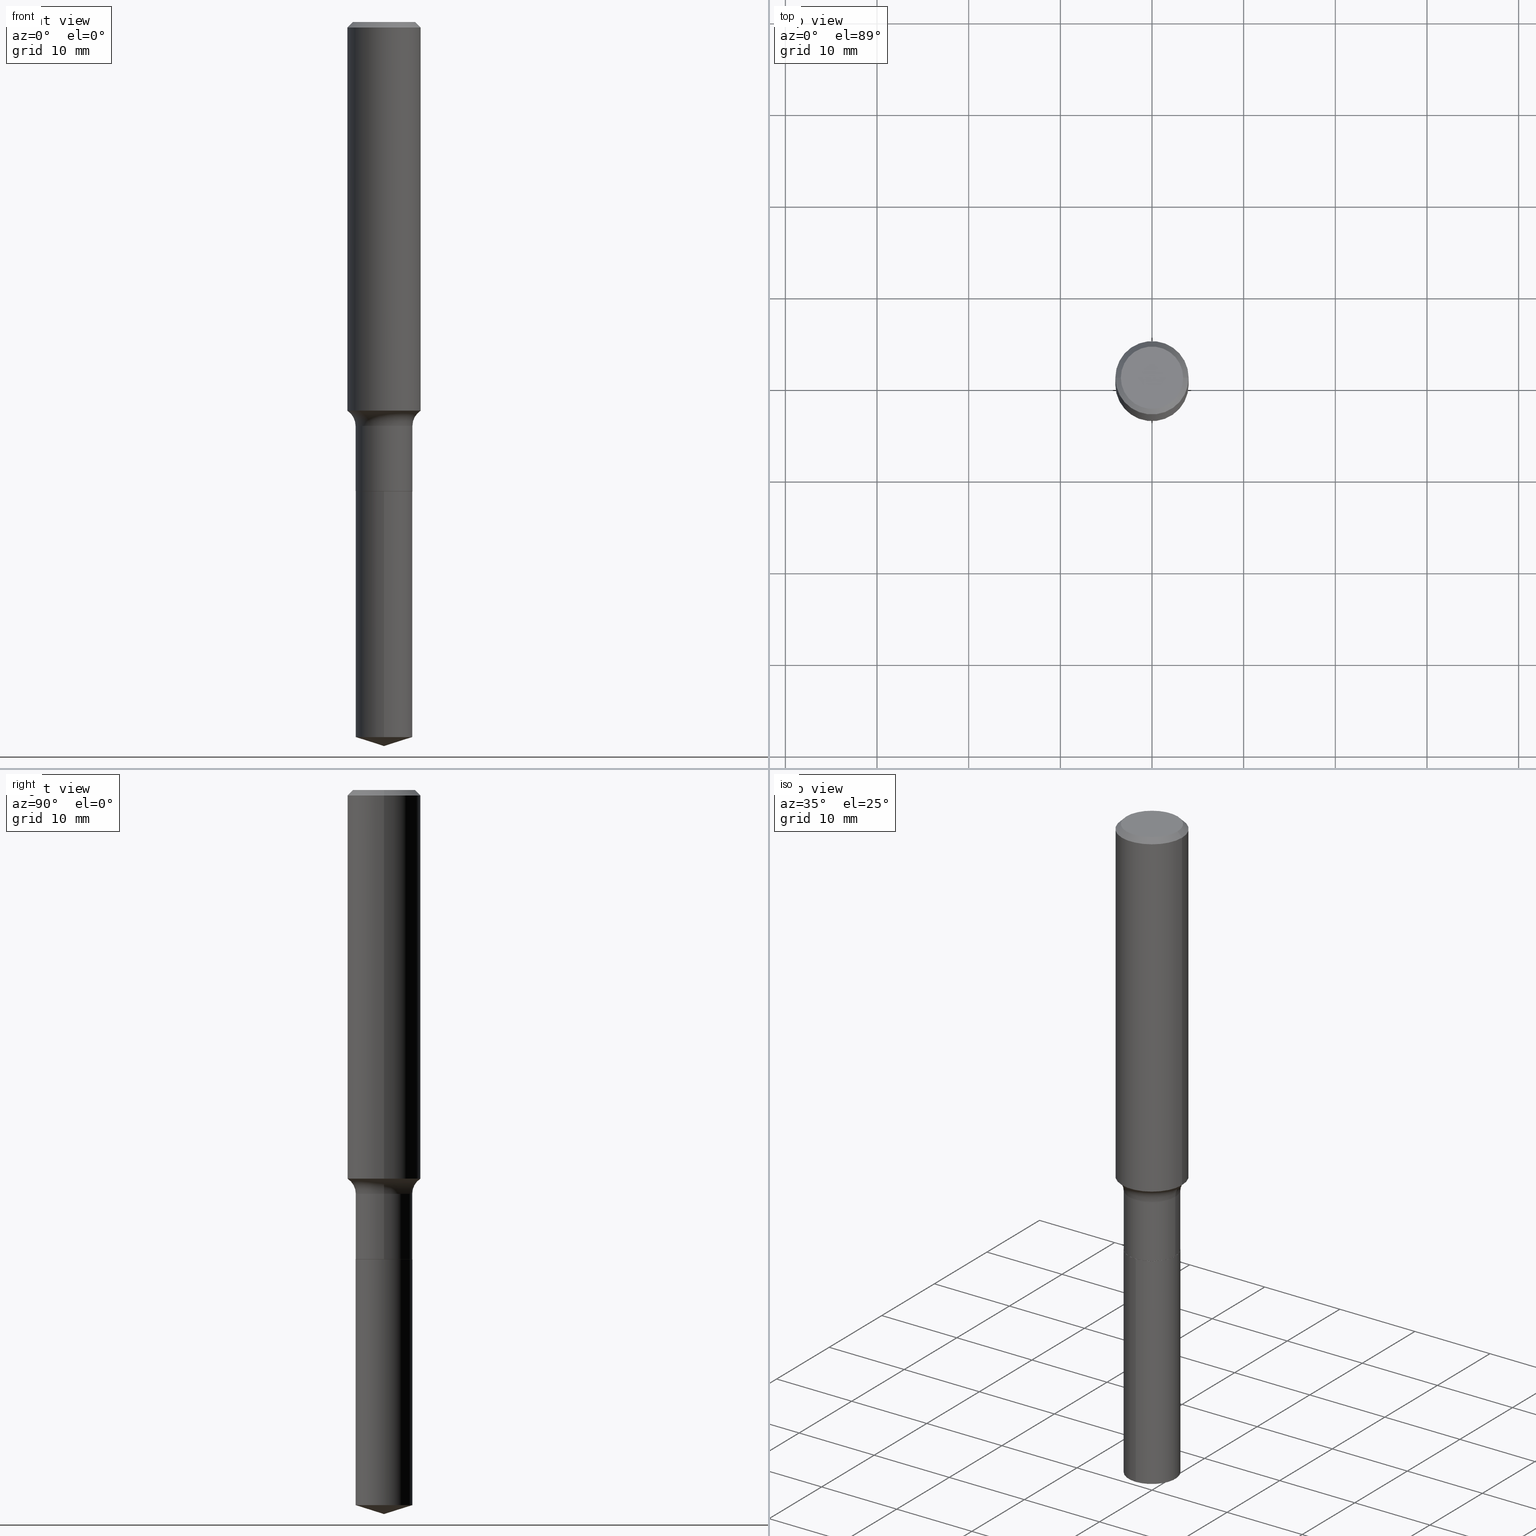
[diagram: canonical four-view strip — front | top / right | iso, engineering-drawing reading convention]
A machine part, canonical four-view strip (front | top / right | iso — engineering-drawing reading convention). The complete STEP part file that produces these views, byte-faithful:
ISO-10303-21;
HEADER;
FILE_DESCRIPTION (( 'STEP AP203' ),
    '1' );
FILE_NAME ('63755.STEP',
    '2024-04-19T15:07:46',
    ( '' ),
    ( '' ),
    'SwSTEP 2.0',
    'SolidWorks 2023',
    '' );
FILE_SCHEMA (( 'CONFIG_CONTROL_DESIGN' ));
ENDSEC;

DATA;
#1 = CIRCLE ( 'NONE', #301, 0.1220499999999999641 ) ;
#2 = DIRECTION ( 'NONE',  ( -2.445468806185136597E-29, 3.491481338843145583E-15, 1.000000000000000000 ) ) ;
#3 = ADVANCED_BREP_SHAPE_REPRESENTATION ( '63755', ( #262, #95, #406 ), #130 ) ;
#4 = CARTESIAN_POINT ( 'NONE',  ( 7.511731124286893286E-29, -1.072492965788716522E-14, -3.071717782817320330 ) ) ;
#5 = EDGE_CURVE ( 'NONE', #138, #92, #210, .T. ) ;
#6 = ORIENTED_EDGE ( 'NONE', *, *, #69, .F. ) ;
#7 = DIRECTION ( 'NONE',  ( 1.000000000000000000, -6.982962677686265922E-15, 0.000000000000000000 ) ) ;
#8 = EDGE_LOOP ( 'NONE', ( #329, #467, #327, #261 ) ) ;
#9 = VECTOR ( 'NONE', #223, 39.37007874015748143 ) ;
#10 = CIRCLE ( 'NONE', #226, 0.1338749999999999940 ) ;
#11 = EDGE_CURVE ( 'NONE', #55, #92, #133, .T. ) ;
#12 = ORIENTED_EDGE ( 'NONE', *, *, #340, .F. ) ;
#13 = PERSON_AND_ORGANIZATION_ROLE ( 'creator' ) ;
#14 = ORIENTED_EDGE ( 'NONE', *, *, #11, .F. ) ;
#15 = CYLINDRICAL_SURFACE ( 'NONE', #74, 0.1220499999999999641 ) ;
#16 = FACE_OUTER_BOUND ( 'NONE', #177, .T. ) ;
#17 = CARTESIAN_POINT ( 'NONE',  ( 7.511731124286893286E-29, -1.072492965788716522E-14, -3.071717782817320330 ) ) ;
#18 = AXIS2_PLACEMENT_3D ( 'NONE', #193, #386, #117 ) ;
#19 = DATE_AND_TIME ( #287, #220 ) ;
#20 = CARTESIAN_POINT ( 'NONE',  ( 0.000000000000000000, 0.000000000000000000, 0.000000000000000000 ) ) ;
#21 = DIMENSIONAL_EXPONENTS ( 1.000000000000000000, 0.000000000000000000, 0.000000000000000000, 0.000000000000000000, 0.000000000000000000, 0.000000000000000000, 0.000000000000000000 ) ;
#22 = ORIENTED_EDGE ( 'NONE', *, *, #188, .F. ) ;
#23 = DIRECTION ( 'NONE',  ( -2.445413035346810779E-29, 3.491561205857907199E-15, 1.000000000000000000 ) ) ;
#24 = CARTESIAN_POINT ( 'NONE',  ( 5.777420054612421980E-31, -8.248624663016985234E-17, -0.02362500000000015282 ) ) ;
#25 = FACE_OUTER_BOUND ( 'NONE', #359, .T. ) ;
#26 = ADVANCED_FACE ( 'NONE', ( #25 ), #439, .T. ) ;
#27 = VECTOR ( 'NONE', #260, 39.37007874015748143 ) ;
#28 = ORIENTED_EDGE ( 'NONE', *, *, #213, .F. ) ;
#29 = CARTESIAN_POINT ( 'NONE',  ( 5.777420054612421980E-31, -8.248624663016985234E-17, -0.02362500000000015282 ) ) ;
#30 = DIRECTION ( 'NONE',  ( 1.000000000000000000, -6.982962677686265922E-15, 4.883557194083112901E-29 ) ) ;
#31 = AXIS2_PLACEMENT_3D ( 'NONE', #358, #412, #7 ) ;
#32 = CARTESIAN_POINT ( 'NONE',  ( 0.1575000000000000011, -1.163014681279185964E-15, -0.02362500000000015282 ) ) ;
#33 = EDGE_CURVE ( 'NONE', #54, #397, #109, .T. ) ;
#34 = CYLINDRICAL_SURFACE ( 'NONE', #479, 0.1220499999999999641 ) ;
#35 = PERSON_AND_ORGANIZATION_ROLE ( 'design_owner' ) ;
#36 = DIRECTION ( 'NONE',  ( 1.000000000000000000, -6.982962677686265133E-15, 0.000000000000000000 ) ) ;
#37 = LINE ( 'NONE', #32, #361 ) ;
#38 = CARTESIAN_POINT ( 'NONE',  ( 0.1575000000000000011, -1.182302868365756679E-15, -0.02362500000000015282 ) ) ;
#39 = EDGE_CURVE ( 'NONE', #399, #292, #101, .T. ) ;
#40 = APPROVAL_PERSON_ORGANIZATION ( #45, #50, #458 ) ;
#41 = DIRECTION ( 'NONE',  ( 1.000000000000000000, -6.982962677686266711E-15, 0.000000000000000000 ) ) ;
#42 = AXIS2_PLACEMENT_3D ( 'NONE', #435, #441, #97 ) ;
#43 = AXIS2_PLACEMENT_3D ( 'NONE', #4, #388, #123 ) ;
#44 = DIRECTION ( 'NONE',  ( -6.982962677686265922E-15, -1.000000000000000000, 3.500519750498701277E-15 ) ) ;
#45 = PERSON_AND_ORGANIZATION ( #52, #482 ) ;
#46 = CARTESIAN_POINT ( 'NONE',  ( 4.083023208467837425E-29, -5.829475028416973418E-15, -1.669628006761304961 ) ) ;
#47 = ORIENTED_EDGE ( 'NONE', *, *, #417, .F. ) ;
#48 = ADVANCED_FACE ( 'NONE', ( #376 ), #288, .T. ) ;
#49 = ORIENTED_EDGE ( 'NONE', *, *, #33, .F. ) ;
#50 = APPROVAL ( #356, 'UNSPECIFIED' ) ;
#51 = CONICAL_SURFACE ( 'NONE', #246, 124.8659371009151755, 1.265363707695891904 ) ;
#52 = PERSON ( 'UNSPECIFIED', 'UNSPECIFIED', 'UNSPECIFIED', ('UNSPECIFIED'), ('UNSPECIFIED'), ('UNSPECIFIED') ) ;
#53 = PERSON_AND_ORGANIZATION ( #52, #482 ) ;
#54 = VERTEX_POINT ( 'NONE', #400 ) ;
#55 = VERTEX_POINT ( 'NONE', #405 ) ;
#56 = CARTESIAN_POINT ( 'NONE',  ( 4.929331472627379761E-29, -7.037778934706128744E-15, -2.015699999999999825 ) ) ;
#57 = ORIENTED_EDGE ( 'NONE', *, *, #389, .T. ) ;
#58 = PERSON_AND_ORGANIZATION ( #52, #482 ) ;
#59 = ORIENTED_EDGE ( 'NONE', *, *, #206, .T. ) ;
#60 = CARTESIAN_POINT ( 'NONE',  ( 0.2000499999999999223, -7.454661806563995629E-15, -1.735000000000000098 ) ) ;
#61 = FACE_OUTER_BOUND ( 'NONE', #250, .T. ) ;
#62 = CONICAL_SURFACE ( 'NONE', #348, 0.1575000000000000011, 0.7853981633974447263 ) ;
#63 = SHAPE_DEFINITION_REPRESENTATION ( #402, #3 ) ;
#64 = DIRECTION ( 'NONE',  ( 1.000000000000000000, -6.982962677686265922E-15, 0.000000000000000000 ) ) ;
#65 = APPROVAL_DATE_TIME ( #90, #85 ) ;
#66 = DIRECTION ( 'NONE',  ( -2.445468806185136597E-29, 3.491481338843145583E-15, 1.000000000000000000 ) ) ;
#67 = FACE_OUTER_BOUND ( 'NONE', #91, .T. ) ;
#68 = DIRECTION ( 'NONE',  ( -6.982962677686266711E-15, -1.000000000000000000, 3.491481338843145583E-15 ) ) ;
#69 = EDGE_CURVE ( 'NONE', #292, #423, #102, .T. ) ;
#70 = DIRECTION ( 'NONE',  ( 1.000000000000000000, -6.982962677686265922E-15, 0.000000000000000000 ) ) ;
#71 = COORDINATED_UNIVERSAL_TIME_OFFSET ( 5, 0, .BEHIND. ) ;
#72 = PRODUCT_DEFINITION_FORMATION_WITH_SPECIFIED_SOURCE ( 'ANY', '', #392, .NOT_KNOWN. ) ;
#73 = CARTESIAN_POINT ( 'NONE',  ( 7.605723622535650705E-29, -1.085945366245926235E-14, -3.110199999999999854 ) ) ;
#74 = AXIS2_PLACEMENT_3D ( 'NONE', #20, #256, #264 ) ;
#75 = AXIS2_PLACEMENT_3D ( 'NONE', #270, #154, #451 ) ;
#76 = DIRECTION ( 'NONE',  ( -2.438088387897960049E-29, 3.491481338843145188E-15, 1.000000000000000000 ) ) ;
#77 = DIRECTION ( 'NONE',  ( 0.7071067811866078578, -2.468850131082888544E-15, 0.7071067811864871766 ) ) ;
#78 = CC_DESIGN_PERSON_AND_ORGANIZATION_ASSIGNMENT ( #58, #469, ( #72 ) ) ;
#79 = FACE_OUTER_BOUND ( 'NONE', #363, .T. ) ;
#80 = AXIS2_PLACEMENT_3D ( 'NONE', #436, #107, #252 ) ;
#81 = AXIS2_PLACEMENT_3D ( 'NONE', #143, #23, #227 ) ;
#82 = COORDINATED_UNIVERSAL_TIME_OFFSET ( 5, 0, .BEHIND. ) ;
#83 = EDGE_CURVE ( 'NONE', #214, #294, #234, .T. ) ;
#84 = FACE_OUTER_BOUND ( 'NONE', #432, .T. ) ;
#85 = APPROVAL ( #208, 'UNSPECIFIED' ) ;
#86 = ORIENTED_EDGE ( 'NONE', *, *, #389, .F. ) ;
#87 = CYLINDRICAL_SURFACE ( 'NONE', #387, 0.1575000000000000844 ) ;
#88 = ORIENTED_EDGE ( 'NONE', *, *, #403, .F. ) ;
#89 = CONICAL_SURFACE ( 'NONE', #311, 0.1215500000000000053, 0.7853981633975336552 ) ;
#90 = DATE_AND_TIME ( #173, #330 ) ;
#91 = EDGE_LOOP ( 'NONE', ( #140, #170, #86, #244 ) ) ;
#92 = VERTEX_POINT ( 'NONE', #476 ) ;
#93 = CARTESIAN_POINT ( 'NONE',  ( 0.1215500000000000053, -7.886558048178895333E-15, -2.015699999999999825 ) ) ;
#94 = EDGE_CURVE ( 'NONE', #399, #253, #186, .T. ) ;
#95 = MANIFOLD_SOLID_BREP ( 'Body-Move/Copy2[2]', #202 ) ;
#96 = ORIENTED_EDGE ( 'NONE', *, *, #213, .T. ) ;
#97 = DIRECTION ( 'NONE',  ( 1.000000000000000000, -6.982962677686266711E-15, 0.000000000000000000 ) ) ;
#98 = TOROIDAL_SURFACE ( 'NONE', #156, 0.2000499999999999223, 0.07799999999999997213 ) ;
#99 = DIRECTION ( 'NONE',  ( 1.000000000000000000, -6.982962677686265922E-15, 0.000000000000000000 ) ) ;
#100 = PERSON_AND_ORGANIZATION ( #52, #482 ) ;
#101 = LINE ( 'NONE', #249, #410 ) ;
#102 = CIRCLE ( 'NONE', #383, 0.1575000000000000011 ) ;
#103 = AXIS2_PLACEMENT_3D ( 'NONE', #360, #201, #463 ) ;
#104 = EDGE_CURVE ( 'NONE', #480, #423, #215, .T. ) ;
#105 = ORIENTED_EDGE ( 'NONE', *, *, #141, .F. ) ;
#106 = CC_DESIGN_DATE_AND_TIME_ASSIGNMENT ( #485, #346, ( #255 ) ) ;
#107 = DIRECTION ( 'NONE',  ( 2.445468806185136597E-29, -3.491481338843145583E-15, -1.000000000000000000 ) ) ;
#108 = VERTEX_POINT ( 'NONE', #373 ) ;
#109 = CIRCLE ( 'NONE', #372, 0.1220500000000000057 ) ;
#110 = CIRCLE ( 'NONE', #31, 0.1575000000000001954 ) ;
#111 =( NAMED_UNIT ( * ) SI_UNIT ( $, .STERADIAN. ) SOLID_ANGLE_UNIT ( ) );
#112 = CARTESIAN_POINT ( 'NONE',  ( -8.867026771399698515E-28, 1.266037469261874073E-13, 36.25987874015748247 ) ) ;
#113 = DIRECTION ( 'NONE',  ( 2.445468806185136597E-29, -3.491481338843145583E-15, -1.000000000000000000 ) ) ;
#114 = APPLICATION_PROTOCOL_DEFINITION ( 'international standard', 'config_control_design', 1994, #205 ) ;
#115 = CARTESIAN_POINT ( 'NONE',  ( 0.1220499999999999641, -6.909990717704466794E-15, -1.735000000000000098 ) ) ;
#116 = PLANE ( 'NONE',  #124 ) ;
#117 = DIRECTION ( 'NONE',  ( -6.982962677686265922E-15, -1.000000000000000000, 4.476604659834925490E-15 ) ) ;
#118 = ADVANCED_FACE ( 'NONE', ( #67 ), #15, .T. ) ;
#119 = CARTESIAN_POINT ( 'NONE',  ( 0.1338749999999999940, -1.040731925365424925E-15, 4.101342130351393887E-18 ) ) ;
#120 = DIRECTION ( 'NONE',  ( -2.445413035346810779E-29, 3.491561205857906805E-15, 1.000000000000000000 ) ) ;
#121 = COORDINATED_UNIVERSAL_TIME_OFFSET ( 5, 0, .BEHIND. ) ;
#122 = EDGE_CURVE ( 'NONE', #323, #292, #37, .T. ) ;
#123 = DIRECTION ( 'NONE',  ( -6.982962677686265922E-15, -1.000000000000000000, 4.476604659834925490E-15 ) ) ;
#124 = AXIS2_PLACEMENT_3D ( 'NONE', #416, #490, #158 ) ;
#125 = ORIENTED_EDGE ( 'NONE', *, *, #328, .F. ) ;
#126 = ORIENTED_EDGE ( 'NONE', *, *, #357, .T. ) ;
#127 = CC_DESIGN_PERSON_AND_ORGANIZATION_ASSIGNMENT ( #53, #13, ( #255 ) ) ;
#128 = ORIENTED_EDGE ( 'NONE', *, *, #488, .T. ) ;
#129 = ADVANCED_FACE ( 'NONE', ( #189 ), #62, .T. ) ;
#130 =( GEOMETRIC_REPRESENTATION_CONTEXT ( 3 ) GLOBAL_UNCERTAINTY_ASSIGNED_CONTEXT ( ( #443 ) ) GLOBAL_UNIT_ASSIGNED_CONTEXT ( ( #355, #228, #111 ) ) REPRESENTATION_CONTEXT ( 'NONE', 'WORKASPACE' ) );
#131 = ORIENTED_EDGE ( 'NONE', *, *, #206, .F. ) ;
#132 = VERTEX_POINT ( 'NONE', #222 ) ;
#133 = CIRCLE ( 'NONE', #428, 0.07799999999999999989 ) ;
#134 = CIRCLE ( 'NONE', #103, 0.1220499999999999780 ) ;
#135 = PERSON_AND_ORGANIZATION ( #52, #482 ) ;
#136 = ORIENTED_EDGE ( 'NONE', *, *, #191, .T. ) ;
#137 = ORIENTED_EDGE ( 'NONE', *, *, #488, .F. ) ;
#138 = VERTEX_POINT ( 'NONE', #271 ) ;
#139 = DIRECTION ( 'NONE',  ( 1.000000000000000000, -6.982962677686266711E-15, 4.876170806578254279E-29 ) ) ;
#140 = ORIENTED_EDGE ( 'NONE', *, *, #236, .T. ) ;
#141 = EDGE_CURVE ( 'NONE', #174, #108, #478, .T. ) ;
#142 = VECTOR ( 'NONE', #175, 39.37007874015748143 ) ;
#143 = CARTESIAN_POINT ( 'NONE',  ( 4.929331472627379761E-29, -7.037778934706128744E-15, -2.015699999999999825 ) ) ;
#144 = VECTOR ( 'NONE', #272, 39.37007874015748143 ) ;
#145 = APPROVAL ( #375, 'UNSPECIFIED' ) ;
#146 = CARTESIAN_POINT ( 'NONE',  ( -8.522705948115595040E-16, -0.1220500000000070279, -2.015699999999999381 ) ) ;
#147 = ADVANCED_FACE ( 'NONE', ( #450 ), #116, .F. ) ;
#148 = CARTESIAN_POINT ( 'NONE',  ( 4.242888378731212847E-29, -6.057720122892857986E-15, -1.735000000000000098 ) ) ;
#149 = ADVANCED_FACE ( 'NONE', ( #440 ), #326, .T. ) ;
#150 = CARTESIAN_POINT ( 'NONE',  ( 4.929331472627379761E-29, -7.037778934706128744E-15, -2.015699999999999825 ) ) ;
#151 = AXIS2_PLACEMENT_3D ( 'NONE', #56, #369, #335 ) ;
#152 = AXIS2_PLACEMENT_3D ( 'NONE', #310, #382, #36 ) ;
#153 = CARTESIAN_POINT ( 'NONE',  ( 8.672174089952514240E-16, 0.1220499999999929697, -2.015700000000000713 ) ) ;
#154 = DIRECTION ( 'NONE',  ( -2.445468806185136597E-29, 3.491481338843145583E-15, 1.000000000000000000 ) ) ;
#155 = CARTESIAN_POINT ( 'NONE',  ( 0.1215500000000000053, -7.886558048178895333E-15, -2.015699999999999825 ) ) ;
#156 = AXIS2_PLACEMENT_3D ( 'NONE', #148, #343, #30 ) ;
#157 = ADVANCED_FACE ( 'NONE', ( #16 ), #87, .T. ) ;
#158 = DIRECTION ( 'NONE',  ( -1.000000000000000000, 6.982962677686265922E-15, -4.876176775795935793E-29 ) ) ;
#159 = FACE_OUTER_BOUND ( 'NONE', #251, .T. ) ;
#160 = DIRECTION ( 'NONE',  ( -2.445413035346810779E-29, 3.491561205857907199E-15, 1.000000000000000000 ) ) ;
#161 = CIRCLE ( 'NONE', #176, 0.1575000000000000011 ) ;
#162 = LINE ( 'NONE', #380, #203 ) ;
#163 = EDGE_CURVE ( 'NONE', #108, #138, #431, .T. ) ;
#164 = DIRECTION ( 'NONE',  ( 2.445413035346810779E-29, -3.491561205857906805E-15, -1.000000000000000000 ) ) ;
#165 = ORIENTED_EDGE ( 'NONE', *, *, #94, .F. ) ;
#166 = CONICAL_SURFACE ( 'NONE', #194, 124.8659371009151755, 1.265363707695891904 ) ;
#167 = ORIENTED_EDGE ( 'NONE', *, *, #365, .T. ) ;
#168 = ORIENTED_EDGE ( 'NONE', *, *, #104, .F. ) ;
#169 = DIRECTION ( 'NONE',  ( -2.445468806185136597E-29, 3.491481338843145583E-15, 1.000000000000000000 ) ) ;
#170 = ORIENTED_EDGE ( 'NONE', *, *, #5, .T. ) ;
#171 = DIRECTION ( 'NONE',  ( -1.000000000000000000, 7.105427357600997914E-15, 0.000000000000000000 ) ) ;
#172 = DIRECTION ( 'NONE',  ( -2.445468806185136597E-29, 3.491481338843145583E-15, 1.000000000000000000 ) ) ;
#173 = CALENDAR_DATE ( 2024, 19, 4 ) ;
#174 = VERTEX_POINT ( 'NONE', #93 ) ;
#175 = DIRECTION ( 'NONE',  ( -2.445468806185136877E-29, 3.491481338843145188E-15, 1.000000000000000000 ) ) ;
#176 = AXIS2_PLACEMENT_3D ( 'NONE', #29, #295, #99 ) ;
#177 = EDGE_LOOP ( 'NONE', ( #366, #128, #408, #131 ) ) ;
#178 = EDGE_LOOP ( 'NONE', ( #434, #466, #459, #125 ) ) ;
#179 = DIRECTION ( 'NONE',  ( -2.445468806185136597E-29, 3.491481338843145583E-15, 1.000000000000000000 ) ) ;
#180 = CC_DESIGN_DATE_AND_TIME_ASSIGNMENT ( #296, #433, ( #199 ) ) ;
#181 = DIRECTION ( 'NONE',  ( 1.000000000000000000, -6.982962677686265922E-15, 0.000000000000000000 ) ) ;
#182 = AXIS2_PLACEMENT_3D ( 'NONE', #374, #179, #254 ) ;
#183 = CC_DESIGN_PERSON_AND_ORGANIZATION_ASSIGNMENT ( #337, #219, ( #72 ) ) ;
#184 = DIRECTION ( 'NONE',  ( 0.7071067811865450192, -7.319954787623246579E-15, -0.7071067811865500152 ) ) ;
#185 = DIRECTION ( 'NONE',  ( 0.000000000000000000, 0.000000000000000000, 1.000000000000000000 ) ) ;
#186 = CIRCLE ( 'NONE', #280, 0.07799999999999999989 ) ;
#187 = DIRECTION ( 'NONE',  ( -2.445468806185136877E-29, 3.491481338843145188E-15, 1.000000000000000000 ) ) ;
#188 = EDGE_CURVE ( 'NONE', #138, #289, #134, .T. ) ;
#189 = FACE_OUTER_BOUND ( 'NONE', #473, .T. ) ;
#190 = CARTESIAN_POINT ( 'NONE',  ( 8.672174089952774564E-16, 0.1220499999999929697, -2.015700000000000713 ) ) ;
#191 = EDGE_CURVE ( 'NONE', #108, #174, #318, .T. ) ;
#192 = LOCAL_TIME ( 11, 7, 46.00000000000000000, #212 ) ;
#193 = CARTESIAN_POINT ( 'NONE',  ( 4.929331472627379761E-29, -7.037778934706128744E-15, -2.015699999999999825 ) ) ;
#194 = AXIS2_PLACEMENT_3D ( 'NONE', #420, #266, #448 ) ;
#195 = PERSON_AND_ORGANIZATION ( #52, #482 ) ;
#196 = ADVANCED_FACE ( 'NONE', ( #218 ), #225, .T. ) ;
#197 = DIRECTION ( 'NONE',  ( -0.7071067811866078578, 7.493145998870571886E-15, 0.7071067811864871766 ) ) ;
#198 = FACE_OUTER_BOUND ( 'NONE', #464, .T. ) ;
#199 = SECURITY_CLASSIFICATION ( '', '', #230 ) ;
#200 = ORIENTED_EDGE ( 'NONE', *, *, #328, .T. ) ;
#201 = DIRECTION ( 'NONE',  ( -2.445468806185136597E-29, 3.491481338843145583E-15, 1.000000000000000000 ) ) ;
#202 = CLOSED_SHELL ( 'NONE', ( #306, #26, #232, #312, #118, #282, #472, #157, #129, #147, #239, #48 ) ) ;
#203 = VECTOR ( 'NONE', #265, 39.37007874015748854 ) ;
#204 = ORIENTED_EDGE ( 'NONE', *, *, #39, .F. ) ;
#205 = APPLICATION_CONTEXT ( 'configuration controlled 3d designs of mechanical parts and assemblies' ) ;
#206 = EDGE_CURVE ( 'NONE', #423, #292, #161, .T. ) ;
#207 = ORIENTED_EDGE ( 'NONE', *, *, #427, .T. ) ;
#208 = APPROVAL_STATUS ( 'not_yet_approved' ) ;
#209 = ORIENTED_EDGE ( 'NONE', *, *, #94, .T. ) ;
#210 = LINE ( 'NONE', #338, #142 ) ;
#211 = ORIENTED_EDGE ( 'NONE', *, *, #449, .T. ) ;
#212 = COORDINATED_UNIVERSAL_TIME_OFFSET ( 5, 0, .BEHIND. ) ;
#213 = EDGE_CURVE ( 'NONE', #323, #480, #384, .T. ) ;
#214 = VERTEX_POINT ( 'NONE', #477 ) ;
#215 = LINE ( 'NONE', #407, #9 ) ;
#216 = APPROVAL_ROLE ( '' ) ;
#217 = ORIENTED_EDGE ( 'NONE', *, *, #191, .F. ) ;
#218 = FACE_OUTER_BOUND ( 'NONE', #425, .T. ) ;
#219 = PERSON_AND_ORGANIZATION_ROLE ( 'design_supplier' ) ;
#220 = LOCAL_TIME ( 11, 7, 46.00000000000000000, #371 ) ;
#221 = CARTESIAN_POINT ( 'NONE',  ( -1.002970424325033577E-46, 1.431975951230896486E-32, 4.101342130344485961E-18 ) ) ;
#222 = CARTESIAN_POINT ( 'NONE',  ( 7.605723622535650705E-29, -1.085945366245926235E-14, -3.110199999999999854 ) ) ;
#223 = DIRECTION ( 'NONE',  ( -0.7071067811865450192, 2.468850131082230634E-15, -0.7071067811865500152 ) ) ;
#224 = CLOSED_SHELL ( 'NONE', ( #149, #259, #324, #196, #442 ) ) ;
#225 = CYLINDRICAL_SURFACE ( 'NONE', #81, 0.1220500000000000057 ) ;
#226 = AXIS2_PLACEMENT_3D ( 'NONE', #221, #309, #139 ) ;
#227 = DIRECTION ( 'NONE',  ( -6.982962677686265922E-15, -1.000000000000000000, 4.476604659834925490E-15 ) ) ;
#228 =( NAMED_UNIT ( * ) PLANE_ANGLE_UNIT ( ) SI_UNIT ( $, .RADIAN. ) );
#229 = DIRECTION ( 'NONE',  ( 1.000000000000000000, -6.982962677686266711E-15, 4.876176775795935793E-29 ) ) ;
#230 = SECURITY_CLASSIFICATION_LEVEL ( 'unclassified' ) ;
#231 = DIRECTION ( 'NONE',  ( 1.000000000000000000, -6.982962677686266711E-15, 0.000000000000000000 ) ) ;
#232 = ADVANCED_FACE ( 'NONE', ( #61 ), #304, .T. ) ;
#233 = DIRECTION ( 'NONE',  ( -2.445468806185136877E-29, 3.491481338843145188E-15, 1.000000000000000000 ) ) ;
#234 = CIRCLE ( 'NONE', #151, 0.1220500000000000057 ) ;
#235 = AXIS2_PLACEMENT_3D ( 'NONE', #238, #474, #64 ) ;
#236 = EDGE_CURVE ( 'NONE', #289, #138, #446, .T. ) ;
#237 = LINE ( 'NONE', #73, #144 ) ;
#238 = CARTESIAN_POINT ( 'NONE',  ( 4.242888378731212847E-29, -6.057720122892857986E-15, -1.735000000000000098 ) ) ;
#239 = ADVANCED_FACE ( 'NONE', ( #79 ), #240, .F. ) ;
#240 = PLANE ( 'NONE',  #393 ) ;
#241 = EDGE_CURVE ( 'NONE', #294, #214, #242, .T. ) ;
#242 = CIRCLE ( 'NONE', #18, 0.1220500000000000057 ) ;
#243 = APPLICATION_PROTOCOL_DEFINITION ( 'international standard', 'config_control_design', 1994, #444 ) ;
#244 = ORIENTED_EDGE ( 'NONE', *, *, #316, .F. ) ;
#245 = ORIENTED_EDGE ( 'NONE', *, *, #163, .F. ) ;
#246 = AXIS2_PLACEMENT_3D ( 'NONE', #112, #352, #44 ) ;
#247 = ORIENTED_EDGE ( 'NONE', *, *, #357, .F. ) ;
#248 = ORIENTED_EDGE ( 'NONE', *, *, #316, .T. ) ;
#249 = CARTESIAN_POINT ( 'NONE',  ( 0.1575000000000000844, -1.099816621735587677E-15, 7.679978421878603638E-30 ) ) ;
#250 = EDGE_LOOP ( 'NONE', ( #211, #299, #6, #204 ) ) ;
#251 = EDGE_LOOP ( 'NONE', ( #137, #404, #462, #165 ) ) ;
#252 = DIRECTION ( 'NONE',  ( -1.000000000000000000, 6.982962677686265922E-15, 0.000000000000000000 ) ) ;
#253 = VERTEX_POINT ( 'NONE', #115 ) ;
#254 = DIRECTION ( 'NONE',  ( 1.000000000000000000, -6.982962677686266711E-15, 4.876170806578254279E-29 ) ) ;
#255 = PRODUCT_DEFINITION ( 'UNKNOWN', '', #72, #438 ) ;
#256 = DIRECTION ( 'NONE',  ( -2.445468806185136597E-29, 3.491481338843145583E-15, 1.000000000000000000 ) ) ;
#257 = CARTESIAN_POINT ( 'NONE',  ( 4.242888378731212847E-29, -6.057720122892857986E-15, -1.735000000000000098 ) ) ;
#258 = DIRECTION ( 'NONE',  ( -2.445468806185136597E-29, 3.491481338843145583E-15, 1.000000000000000000 ) ) ;
#259 = ADVANCED_FACE ( 'NONE', ( #484 ), #51, .T. ) ;
#260 = DIRECTION ( 'NONE',  ( -2.445413035346810779E-29, 3.491561205857906805E-15, 1.000000000000000000 ) ) ;
#261 = ORIENTED_EDGE ( 'NONE', *, *, #365, .F. ) ;
#262 = MANIFOLD_SOLID_BREP ( 'Body-Move/Copy2[1]', #224 ) ;
#263 = CIRCLE ( 'NONE', #43, 0.1220500000000000057 ) ;
#264 = DIRECTION ( 'NONE',  ( 1.000000000000000000, -6.982962677686266711E-15, 4.876176775795935793E-29 ) ) ;
#265 = DIRECTION ( 'NONE',  ( 6.776566513254257349E-15, 0.9537169507482289310, 0.3007057995042669574 ) ) ;
#266 = DIRECTION ( 'NONE',  ( -2.445413035346810779E-29, 3.491561205857907199E-15, 1.000000000000000000 ) ) ;
#267 = PERSON_AND_ORGANIZATION_ROLE ( 'classification_officer' ) ;
#268 = DIRECTION ( 'NONE',  ( -2.445468806185136597E-29, 3.491481338843145583E-15, 1.000000000000000000 ) ) ;
#269 = LENGTH_MEASURE_WITH_UNIT ( LENGTH_MEASURE( 0.02539999999999999897 ), #445 );
#270 = CARTESIAN_POINT ( 'NONE',  ( 0.000000000000000000, 0.000000000000000000, 0.000000000000000000 ) ) ;
#271 = CARTESIAN_POINT ( 'NONE',  ( -0.1220500000000000057, -5.679659249469580789E-15, -2.015200000000000102 ) ) ;
#272 = DIRECTION ( 'NONE',  ( -6.659769872151632089E-15, -0.9537169507482267106, 0.3007057995042736187 ) ) ;
#273 = CIRCLE ( 'NONE', #235, 0.1220499999999999641 ) ;
#274 = EDGE_CURVE ( 'NONE', #132, #54, #237, .T. ) ;
#275 = FACE_OUTER_BOUND ( 'NONE', #281, .T. ) ;
#276 = LINE ( 'NONE', #454, #453 ) ;
#277 = AXIS2_PLACEMENT_3D ( 'NONE', #46, #308, #70 ) ;
#278 = CARTESIAN_POINT ( 'NONE',  ( 0.000000000000000000, 0.000000000000000000, 0.000000000000000000 ) ) ;
#279 = CARTESIAN_POINT ( 'NONE',  ( 4.929331472627379761E-29, -7.037778934706128744E-15, -2.015699999999999825 ) ) ;
#280 = AXIS2_PLACEMENT_3D ( 'NONE', #60, #68, #471 ) ;
#281 = EDGE_LOOP ( 'NONE', ( #88, #426, #336 ) ) ;
#282 = ADVANCED_FACE ( 'NONE', ( #320 ), #34, .T. ) ;
#283 = ORIENTED_EDGE ( 'NONE', *, *, #241, .T. ) ;
#284 = CARTESIAN_POINT ( 'NONE',  ( 0.000000000000000000, 0.000000000000000000, 0.000000000000000000 ) ) ;
#285 = CC_DESIGN_APPROVAL ( #145, ( #199 ) ) ;
#286 = EDGE_CURVE ( 'NONE', #55, #423, #276, .T. ) ;
#287 = CALENDAR_DATE ( 2024, 19, 4 ) ;
#288 = CONICAL_SURFACE ( 'NONE', #42, 0.1215500000000000053, 0.7853981633975336552 ) ;
#289 = VERTEX_POINT ( 'NONE', #492 ) ;
#290 = DIRECTION ( 'NONE',  ( -6.982962677686265922E-15, -1.000000000000000000, 4.476604659834925490E-15 ) ) ;
#291 = CALENDAR_DATE ( 2024, 19, 4 ) ;
#292 = VERTEX_POINT ( 'NONE', #38 ) ;
#293 = DIRECTION ( 'NONE',  ( 7.105427357601001859E-15, 1.000000000000000000, -3.491481338843145583E-15 ) ) ;
#294 = VERTEX_POINT ( 'NONE', #190 ) ;
#295 = DIRECTION ( 'NONE',  ( -2.445468806185136597E-29, 3.491481338843145583E-15, 1.000000000000000000 ) ) ;
#296 = DATE_AND_TIME ( #291, #192 ) ;
#297 = CARTESIAN_POINT ( 'NONE',  ( -0.2000499999999999223, -4.636279380004777919E-15, -1.735000000000000098 ) ) ;
#298 = LINE ( 'NONE', #146, #27 ) ;
#299 = ORIENTED_EDGE ( 'NONE', *, *, #286, .T. ) ;
#300 = ORIENTED_EDGE ( 'NONE', *, *, #188, .T. ) ;
#301 = AXIS2_PLACEMENT_3D ( 'NONE', #257, #66, #181 ) ;
#302 = DIRECTION ( 'NONE',  ( -2.445413035346810779E-29, 3.491561205857907199E-15, 1.000000000000000000 ) ) ;
#303 = EDGE_LOOP ( 'NONE', ( #126, #96 ) ) ;
#304 = CYLINDRICAL_SURFACE ( 'NONE', #75, 0.1575000000000000844 ) ;
#305 = DATE_AND_TIME ( #390, #367 ) ;
#306 = ADVANCED_FACE ( 'NONE', ( #349 ), #89, .T. ) ;
#307 = DIRECTION ( 'NONE',  ( -6.982962677686265922E-15, -1.000000000000000000, 4.476604659834925490E-15 ) ) ;
#308 = DIRECTION ( 'NONE',  ( -2.445468806185136597E-29, 3.491481338843145583E-15, 1.000000000000000000 ) ) ;
#309 = DIRECTION ( 'NONE',  ( -2.445468806185136597E-29, 3.491481338843145583E-15, 1.000000000000000000 ) ) ;
#310 = CARTESIAN_POINT ( 'NONE',  ( 4.928108738224288081E-29, -7.036033194036707240E-15, -2.015200000000000102 ) ) ;
#311 = AXIS2_PLACEMENT_3D ( 'NONE', #150, #314, #41 ) ;
#312 = ADVANCED_FACE ( 'NONE', ( #159 ), #411, .F. ) ;
#313 = CARTESIAN_POINT ( 'NONE',  ( -0.1575000000000000011, -1.836875828701412226E-15, -0.02362500000000015282 ) ) ;
#314 = DIRECTION ( 'NONE',  ( -2.445468806185136597E-29, 3.491481338843145583E-15, 1.000000000000000000 ) ) ;
#315 = CARTESIAN_POINT ( 'NONE',  ( 4.929331472627379761E-29, -7.037778934706128744E-15, -2.015699999999999825 ) ) ;
#316 = EDGE_CURVE ( 'NONE', #289, #253, #447, .T. ) ;
#317 = CARTESIAN_POINT ( 'NONE',  ( 0.1220499999999999641, -8.522705948116086106E-16, 5.951373754858937892E-30 ) ) ;
#318 = CIRCLE ( 'NONE', #362, 0.1215500000000000053 ) ;
#319 = PRODUCT_RELATED_PRODUCT_CATEGORY ( 'detail', '', ( #392 ) ) ;
#320 = FACE_OUTER_BOUND ( 'NONE', #334, .T. ) ;
#321 = PLANE ( 'NONE',  #333 ) ;
#322 = APPROVAL_PERSON_ORGANIZATION ( #100, #85, #398 ) ;
#323 = VERTEX_POINT ( 'NONE', #119 ) ;
#324 = ADVANCED_FACE ( 'NONE', ( #275 ), #166, .T. ) ;
#325 = VECTOR ( 'NONE', #187, 39.37007874015748143 ) ;
#326 = CYLINDRICAL_SURFACE ( 'NONE', #418, 0.1220500000000000057 ) ;
#327 = ORIENTED_EDGE ( 'NONE', *, *, #83, .F. ) ;
#328 = EDGE_CURVE ( 'NONE', #174, #289, #350, .T. ) ;
#329 = ORIENTED_EDGE ( 'NONE', *, *, #33, .T. ) ;
#330 = LOCAL_TIME ( 11, 7, 46.00000000000000000, #71 ) ;
#331 = PERSON_AND_ORGANIZATION ( #52, #482 ) ;
#332 = ORIENTED_EDGE ( 'NONE', *, *, #241, .F. ) ;
#333 = AXIS2_PLACEMENT_3D ( 'NONE', #279, #164, #424 ) ;
#334 = EDGE_LOOP ( 'NONE', ( #481, #300, #248, #12 ) ) ;
#335 = DIRECTION ( 'NONE',  ( -6.982962677686265922E-15, -1.000000000000000000, 4.476604659834925490E-15 ) ) ;
#336 = ORIENTED_EDGE ( 'NONE', *, *, #427, .F. ) ;
#337 = PERSON_AND_ORGANIZATION ( #52, #482 ) ;
#338 = CARTESIAN_POINT ( 'NONE',  ( -0.1220499999999999641, 8.672174089952020216E-16, -6.003560277656110794E-30 ) ) ;
#339 = DIRECTION ( 'NONE',  ( 1.000000000000000000, -6.982962677686265922E-15, 0.000000000000000000 ) ) ;
#340 = EDGE_CURVE ( 'NONE', #92, #253, #273, .T. ) ;
#341 = DIRECTION ( 'NONE',  ( -1.000000000000000000, 6.982962677686265922E-15, 0.000000000000000000 ) ) ;
#342 = ORIENTED_EDGE ( 'NONE', *, *, #104, .T. ) ;
#343 = DIRECTION ( 'NONE',  ( -2.445468806185136597E-29, 3.491481338843145583E-15, 1.000000000000000000 ) ) ;
#344 = LOCAL_TIME ( 11, 7, 46.00000000000000000, #121 ) ;
#345 = DIRECTION ( 'NONE',  ( -2.445468806185136597E-29, 3.491481338843145583E-15, 1.000000000000000000 ) ) ;
#346 = DATE_TIME_ROLE ( 'creation_date' ) ;
#347 = DIRECTION ( 'NONE',  ( 1.000000000000000000, 0.000000000000000000, 0.000000000000000000 ) ) ;
#348 = AXIS2_PLACEMENT_3D ( 'NONE', #486, #113, #341 ) ;
#349 = FACE_OUTER_BOUND ( 'NONE', #178, .T. ) ;
#350 = LINE ( 'NONE', #155, #429 ) ;
#351 = CARTESIAN_POINT ( 'NONE',  ( 4.929331472627379761E-29, -7.037778934706128744E-15, -2.015699999999999825 ) ) ;
#352 = DIRECTION ( 'NONE',  ( -2.445413035346810779E-29, 3.491561205857907199E-15, 1.000000000000000000 ) ) ;
#353 = CC_DESIGN_APPROVAL ( #50, ( #255 ) ) ;
#354 = VECTOR ( 'NONE', #197, 39.37007874015748143 ) ;
#355 =( CONVERSION_BASED_UNIT ( 'INCH', #269 ) LENGTH_UNIT ( ) NAMED_UNIT ( #21 ) );
#356 = APPROVAL_STATUS ( 'not_yet_approved' ) ;
#357 = EDGE_CURVE ( 'NONE', #480, #323, #10, .T. ) ;
#358 = CARTESIAN_POINT ( 'NONE',  ( 4.083023208467837425E-29, -5.829475028416973418E-15, -1.669628006761304961 ) ) ;
#359 = EDGE_LOOP ( 'NONE', ( #28, #368, #475, #168 ) ) ;
#360 = CARTESIAN_POINT ( 'NONE',  ( 4.928108738224288081E-29, -7.036033194036707240E-15, -2.015200000000000102 ) ) ;
#361 = VECTOR ( 'NONE', #184, 39.37007874015748143 ) ;
#362 = AXIS2_PLACEMENT_3D ( 'NONE', #364, #169, #409 ) ;
#363 = EDGE_LOOP ( 'NONE', ( #105, #217 ) ) ;
#364 = CARTESIAN_POINT ( 'NONE',  ( 4.929331472627379761E-29, -7.037778934706128744E-15, -2.015699999999999825 ) ) ;
#365 = EDGE_CURVE ( 'NONE', #54, #214, #298, .T. ) ;
#366 = ORIENTED_EDGE ( 'NONE', *, *, #286, .F. ) ;
#367 = LOCAL_TIME ( 11, 7, 46.00000000000000000, #82 ) ;
#368 = ORIENTED_EDGE ( 'NONE', *, *, #122, .T. ) ;
#369 = DIRECTION ( 'NONE',  ( -2.445413035346810779E-29, 3.491561205857907199E-15, 1.000000000000000000 ) ) ;
#370 = ORIENTED_EDGE ( 'NONE', *, *, #83, .T. ) ;
#371 = COORDINATED_UNIVERSAL_TIME_OFFSET ( 5, 0, .BEHIND. ) ;
#372 = AXIS2_PLACEMENT_3D ( 'NONE', #17, #302, #307 ) ;
#373 = CARTESIAN_POINT ( 'NONE',  ( -0.1215500000000000053, -6.171465012215616223E-15, -2.015699999999999825 ) ) ;
#374 = CARTESIAN_POINT ( 'NONE',  ( -1.002970424325033577E-46, 1.431975951230896486E-32, 4.101342130344485961E-18 ) ) ;
#375 = APPROVAL_STATUS ( 'not_yet_approved' ) ;
#376 = FACE_OUTER_BOUND ( 'NONE', #395, .T. ) ;
#377 = APPROVAL_DATE_TIME ( #305, #50 ) ;
#378 = CARTESIAN_POINT ( 'NONE',  ( 8.672174089952774564E-16, 0.1220499999999892921, -3.071717782817321218 ) ) ;
#379 = AXIS2_PLACEMENT_3D ( 'NONE', #415, #2, #489 ) ;
#380 = CARTESIAN_POINT ( 'NONE',  ( 7.605950428626952679E-29, -1.085913168657595309E-14, -3.110199999999999854 ) ) ;
#381 = CC_DESIGN_PERSON_AND_ORGANIZATION_ASSIGNMENT ( #195, #35, ( #392 ) ) ;
#382 = DIRECTION ( 'NONE',  ( -2.445468806185136597E-29, 3.491481338843145583E-15, 1.000000000000000000 ) ) ;
#383 = AXIS2_PLACEMENT_3D ( 'NONE', #24, #258, #339 ) ;
#384 = CIRCLE ( 'NONE', #182, 0.1338749999999999940 ) ;
#385 = DIRECTION ( 'NONE',  ( 1.000000000000000000, -6.982962677686265922E-15, 4.876176775795935793E-29 ) ) ;
#386 = DIRECTION ( 'NONE',  ( -2.445413035346810779E-29, 3.491561205857907199E-15, 1.000000000000000000 ) ) ;
#387 = AXIS2_PLACEMENT_3D ( 'NONE', #284, #172, #391 ) ;
#388 = DIRECTION ( 'NONE',  ( -2.445413035346810779E-29, 3.491561205857907199E-15, 1.000000000000000000 ) ) ;
#389 = EDGE_CURVE ( 'NONE', #253, #92, #1, .T. ) ;
#390 = CALENDAR_DATE ( 2024, 19, 4 ) ;
#391 = DIRECTION ( 'NONE',  ( 1.000000000000000000, -6.982962677686267499E-15, 4.876176775795936353E-29 ) ) ;
#392 = PRODUCT ( '63755', '63755', '', ( #414 ) ) ;
#393 = AXIS2_PLACEMENT_3D ( 'NONE', #315, #76, #385 ) ;
#394 = ORIENTED_EDGE ( 'NONE', *, *, #122, .F. ) ;
#395 = EDGE_LOOP ( 'NONE', ( #245, #136, #200, #22 ) ) ;
#396 = DIRECTION ( 'NONE',  ( -2.445468806185136877E-29, 3.491481338843145188E-15, 1.000000000000000000 ) ) ;
#397 = VERTEX_POINT ( 'NONE', #378 ) ;
#398 = APPROVAL_ROLE ( '' ) ;
#399 = VERTEX_POINT ( 'NONE', #483 ) ;
#400 = CARTESIAN_POINT ( 'NONE',  ( -8.522705948115337675E-16, -0.1220500000000107610, -3.071717782817319886 ) ) ;
#401 = APPROVAL_DATE_TIME ( #19, #145 ) ;
#402 = PRODUCT_DEFINITION_SHAPE ( 'NONE', 'NONE',  #255 ) ;
#403 = EDGE_CURVE ( 'NONE', #132, #397, #162, .T. ) ;
#404 = ORIENTED_EDGE ( 'NONE', *, *, #11, .T. ) ;
#405 = CARTESIAN_POINT ( 'NONE',  ( -0.1575000000000002232, -4.710370219594814237E-15, -1.669628006761304961 ) ) ;
#406 = AXIS2_PLACEMENT_3D ( 'NONE', #278, #185, #347 ) ;
#407 = CARTESIAN_POINT ( 'NONE',  ( -0.1575000000000000011, 1.017330375105417098E-15, -0.02362500000000015282 ) ) ;
#408 = ORIENTED_EDGE ( 'NONE', *, *, #39, .T. ) ;
#409 = DIRECTION ( 'NONE',  ( 1.000000000000000000, -6.982962677686266711E-15, 0.000000000000000000 ) ) ;
#410 = VECTOR ( 'NONE', #396, 39.37007874015748143 ) ;
#411 = TOROIDAL_SURFACE ( 'NONE', #379, 0.2000499999999999223, 0.07799999999999997213 ) ;
#412 = DIRECTION ( 'NONE',  ( -2.445468806185136597E-29, 3.491481338843145583E-15, 1.000000000000000000 ) ) ;
#413 = CALENDAR_DATE ( 2024, 19, 4 ) ;
#414 = MECHANICAL_CONTEXT ( 'NONE', #205, 'mechanical' ) ;
#415 = CARTESIAN_POINT ( 'NONE',  ( 4.242888378731212847E-29, -6.057720122892857986E-15, -1.735000000000000098 ) ) ;
#416 = CARTESIAN_POINT ( 'NONE',  ( -5.014852121625167883E-47, 7.159879756154482429E-33, 2.050671065172242981E-18 ) ) ;
#417 = EDGE_CURVE ( 'NONE', #397, #294, #461, .T. ) ;
#418 = AXIS2_PLACEMENT_3D ( 'NONE', #452, #160, #290 ) ;
#419 = CARTESIAN_POINT ( 'NONE',  ( 0.000000000000000000, 0.000000000000000000, 0.000000000000000000 ) ) ;
#420 = CARTESIAN_POINT ( 'NONE',  ( -8.867026771399698515E-28, 1.266037469261874073E-13, 36.25987874015748247 ) ) ;
#421 = CC_DESIGN_SECURITY_CLASSIFICATION ( #199, ( #72 ) ) ;
#422 = CARTESIAN_POINT ( 'NONE',  ( -0.1215500000000000053, -6.174114239389727424E-15, -2.015699999999999825 ) ) ;
#423 = VERTEX_POINT ( 'NONE', #313 ) ;
#424 = DIRECTION ( 'NONE',  ( 6.982962677686265922E-15, 1.000000000000000000, -3.491561205857906805E-15 ) ) ;
#425 = EDGE_LOOP ( 'NONE', ( #47, #207, #167, #332 ) ) ;
#426 = ORIENTED_EDGE ( 'NONE', *, *, #274, .T. ) ;
#427 = EDGE_CURVE ( 'NONE', #397, #54, #263, .T. ) ;
#428 = AXIS2_PLACEMENT_3D ( 'NONE', #297, #293, #171 ) ;
#429 = VECTOR ( 'NONE', #77, 39.37007874015748143 ) ;
#430 = EDGE_LOOP ( 'NONE', ( #470, #437, #49 ) ) ;
#431 = LINE ( 'NONE', #422, #354 ) ;
#432 = EDGE_LOOP ( 'NONE', ( #14, #460, #209, #57 ) ) ;
#433 = DATE_TIME_ROLE ( 'classification_date' ) ;
#434 = ORIENTED_EDGE ( 'NONE', *, *, #141, .T. ) ;
#435 = CARTESIAN_POINT ( 'NONE',  ( 4.929331472627379761E-29, -7.037778934706128744E-15, -2.015699999999999825 ) ) ;
#436 = CARTESIAN_POINT ( 'NONE',  ( 5.777420054612421980E-31, -8.248624663016985234E-17, -0.02362500000000015282 ) ) ;
#437 = ORIENTED_EDGE ( 'NONE', *, *, #403, .T. ) ;
#438 = DESIGN_CONTEXT ( 'detailed design', #444, 'design' ) ;
#439 = CONICAL_SURFACE ( 'NONE', #80, 0.1575000000000000011, 0.7853981633974447263 ) ;
#440 = FACE_OUTER_BOUND ( 'NONE', #8, .T. ) ;
#441 = DIRECTION ( 'NONE',  ( -2.445468806185136597E-29, 3.491481338843145583E-15, 1.000000000000000000 ) ) ;
#442 = ADVANCED_FACE ( 'NONE', ( #198 ), #321, .F. ) ;
#443 = UNCERTAINTY_MEASURE_WITH_UNIT (LENGTH_MEASURE( 1.000000000000000082E-05 ), #355, 'distance_accuracy_value', 'NONE');
#444 = APPLICATION_CONTEXT ( 'configuration controlled 3d designs of mechanical parts and assemblies' ) ;
#445 =( LENGTH_UNIT ( ) NAMED_UNIT ( * ) SI_UNIT ( $, .METRE. ) );
#446 = CIRCLE ( 'NONE', #152, 0.1220499999999999780 ) ;
#447 = LINE ( 'NONE', #317, #325 ) ;
#448 = DIRECTION ( 'NONE',  ( -6.982962677686265922E-15, -1.000000000000000000, 3.500519750498701277E-15 ) ) ;
#449 = EDGE_CURVE ( 'NONE', #399, #55, #110, .T. ) ;
#450 = FACE_OUTER_BOUND ( 'NONE', #303, .T. ) ;
#451 = DIRECTION ( 'NONE',  ( 1.000000000000000000, -6.982962677686267499E-15, 4.876176775795936353E-29 ) ) ;
#452 = CARTESIAN_POINT ( 'NONE',  ( 4.929331472627379761E-29, -7.037778934706128744E-15, -2.015699999999999825 ) ) ;
#453 = VECTOR ( 'NONE', #233, 39.37007874015748143 ) ;
#454 = CARTESIAN_POINT ( 'NONE',  ( -0.1575000000000000844, 1.119104808822158392E-15, -7.747322767151481189E-30 ) ) ;
#455 = CARTESIAN_POINT ( 'NONE',  ( -0.1338749999999999940, 9.760872517903331886E-16, 4.101342130337804525E-18 ) ) ;
#456 = CIRCLE ( 'NONE', #277, 0.1575000000000001954 ) ;
#457 = CC_DESIGN_PERSON_AND_ORGANIZATION_ASSIGNMENT ( #135, #267, ( #199 ) ) ;
#458 = APPROVAL_ROLE ( '' ) ;
#459 = ORIENTED_EDGE ( 'NONE', *, *, #236, .F. ) ;
#460 = ORIENTED_EDGE ( 'NONE', *, *, #449, .F. ) ;
#461 = LINE ( 'NONE', #153, #468 ) ;
#462 = ORIENTED_EDGE ( 'NONE', *, *, #340, .T. ) ;
#463 = DIRECTION ( 'NONE',  ( 1.000000000000000000, -6.982962677686265133E-15, 0.000000000000000000 ) ) ;
#464 = EDGE_LOOP ( 'NONE', ( #370, #283 ) ) ;
#465 = APPROVAL_PERSON_ORGANIZATION ( #331, #145, #216 ) ;
#466 = ORIENTED_EDGE ( 'NONE', *, *, #163, .T. ) ;
#467 = ORIENTED_EDGE ( 'NONE', *, *, #417, .T. ) ;
#468 = VECTOR ( 'NONE', #120, 39.37007874015748143 ) ;
#469 = PERSON_AND_ORGANIZATION_ROLE ( 'creator' ) ;
#470 = ORIENTED_EDGE ( 'NONE', *, *, #274, .F. ) ;
#471 = DIRECTION ( 'NONE',  ( 1.000000000000000000, -6.982962677686258033E-15, 0.000000000000000000 ) ) ;
#472 = ADVANCED_FACE ( 'NONE', ( #84 ), #98, .F. ) ;
#473 = EDGE_LOOP ( 'NONE', ( #394, #247, #342, #59 ) ) ;
#474 = DIRECTION ( 'NONE',  ( -2.445468806185136597E-29, 3.491481338843145583E-15, 1.000000000000000000 ) ) ;
#475 = ORIENTED_EDGE ( 'NONE', *, *, #69, .T. ) ;
#476 = CARTESIAN_POINT ( 'NONE',  ( -0.1220499999999999641, -5.679659249469580789E-15, -1.735000000000000098 ) ) ;
#477 = CARTESIAN_POINT ( 'NONE',  ( -8.522705948115595040E-16, -0.1220500000000070279, -2.015699999999999381 ) ) ;
#478 = CIRCLE ( 'NONE', #487, 0.1215500000000000053 ) ;
#479 = AXIS2_PLACEMENT_3D ( 'NONE', #419, #345, #229 ) ;
#480 = VERTEX_POINT ( 'NONE', #455 ) ;
#481 = ORIENTED_EDGE ( 'NONE', *, *, #5, .F. ) ;
#482 = ORGANIZATION ( 'UNSPECIFIED', 'UNSPECIFIED', '' ) ;
#483 = CARTESIAN_POINT ( 'NONE',  ( 0.1575000000000002232, -6.929291650152562476E-15, -1.669628006761304961 ) ) ;
#484 = FACE_OUTER_BOUND ( 'NONE', #430, .T. ) ;
#485 = DATE_AND_TIME ( #413, #344 ) ;
#486 = CARTESIAN_POINT ( 'NONE',  ( 5.777420054612421980E-31, -8.248624663016985234E-17, -0.02362500000000015282 ) ) ;
#487 = AXIS2_PLACEMENT_3D ( 'NONE', #351, #268, #231 ) ;
#488 = EDGE_CURVE ( 'NONE', #55, #399, #456, .T. ) ;
#489 = DIRECTION ( 'NONE',  ( 1.000000000000000000, -6.982962677686265922E-15, 4.883557194083112901E-29 ) ) ;
#490 = DIRECTION ( 'NONE',  ( 2.438088387897960049E-29, -3.491481338843145188E-15, -1.000000000000000000 ) ) ;
#491 = CC_DESIGN_APPROVAL ( #85, ( #72 ) ) ;
#492 = CARTESIAN_POINT ( 'NONE',  ( 0.1220499999999999780, -7.888303788848316048E-15, -2.015200000000000102 ) ) ;
ENDSEC;
END-ISO-10303-21;
